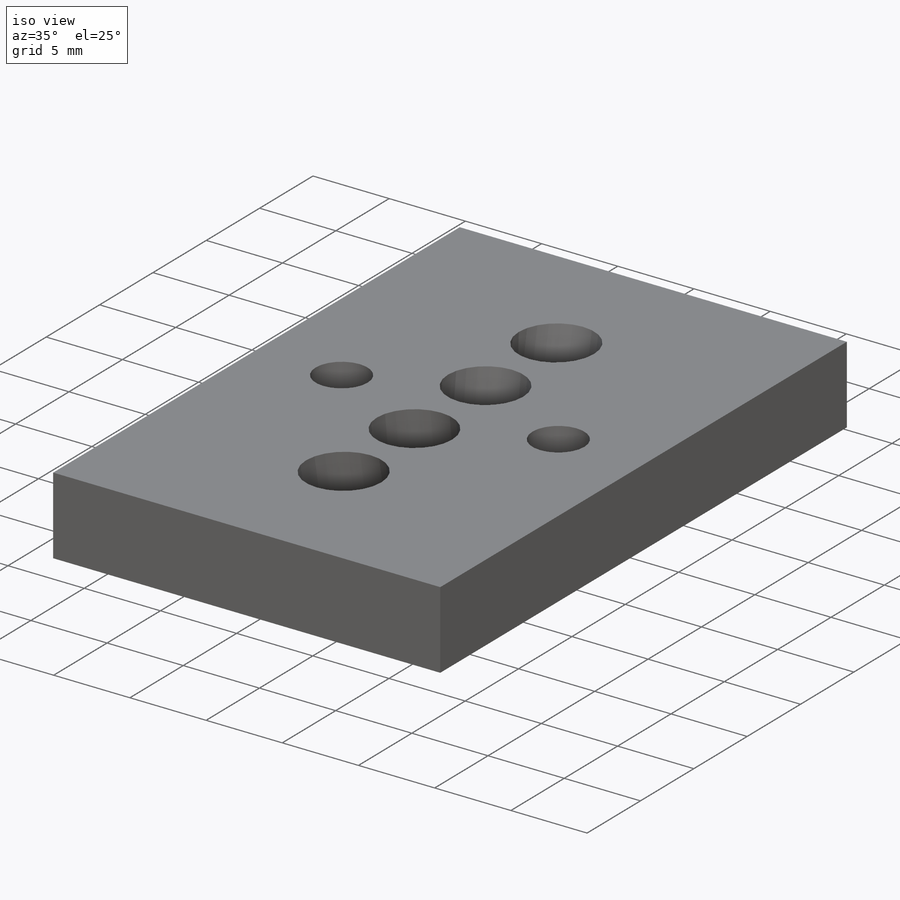
[diagram: iso view]
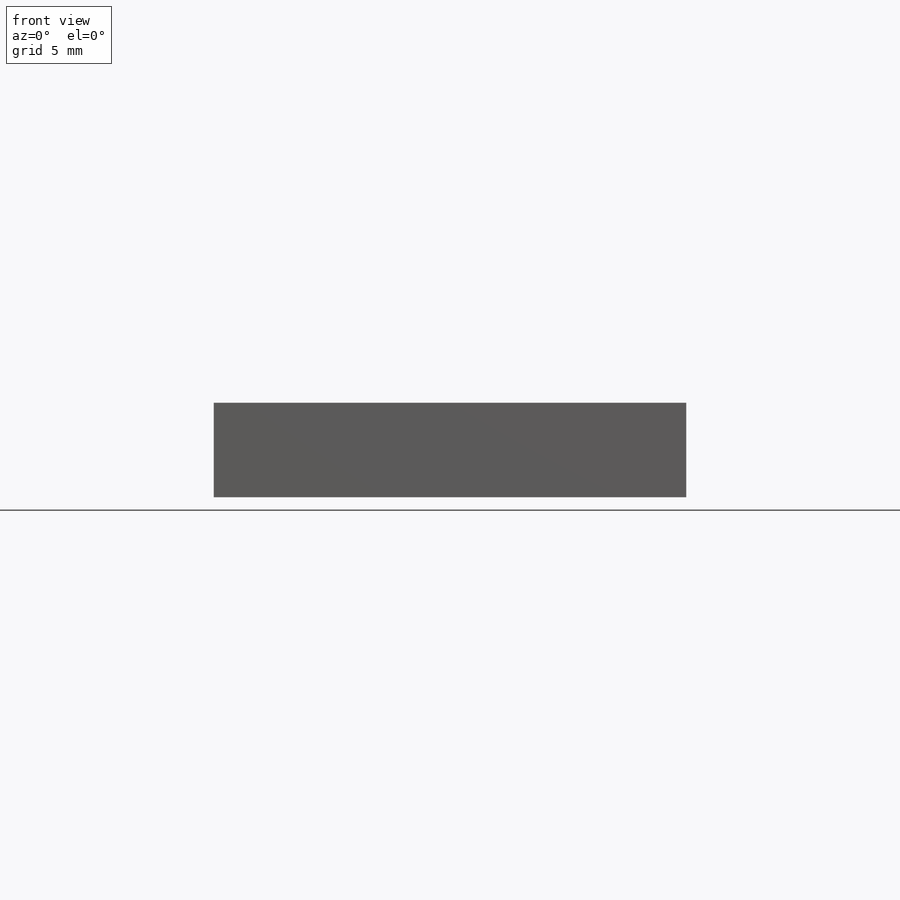
[diagram: front view]
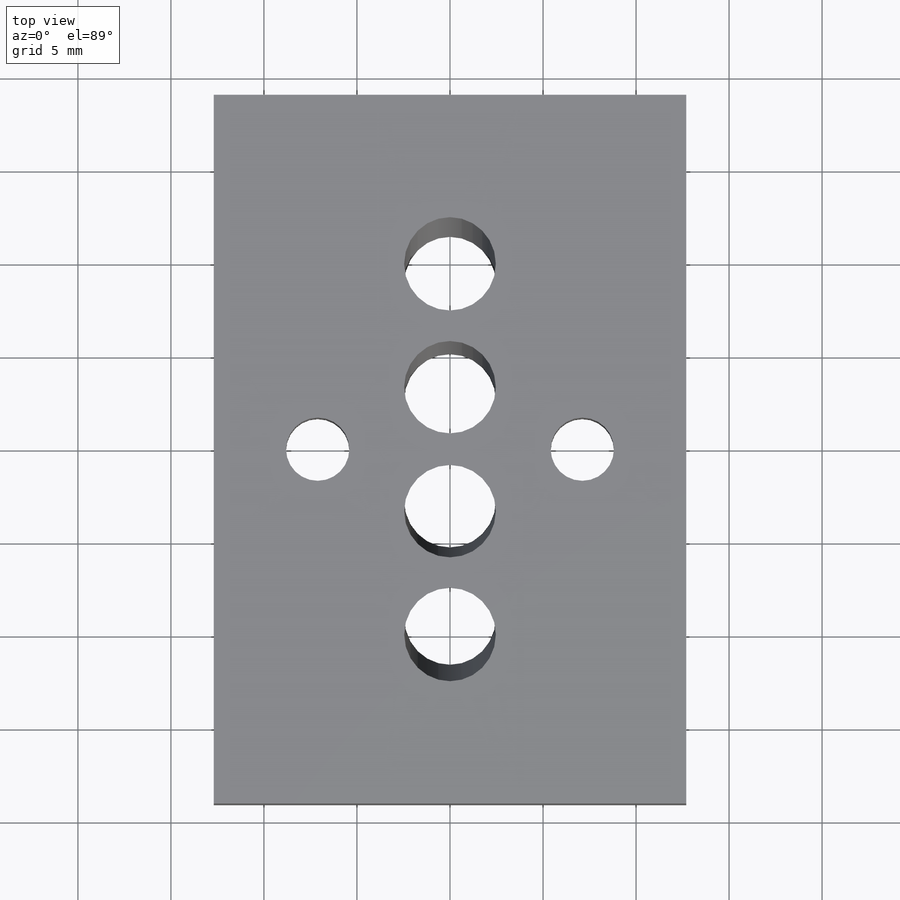
[diagram: top view]
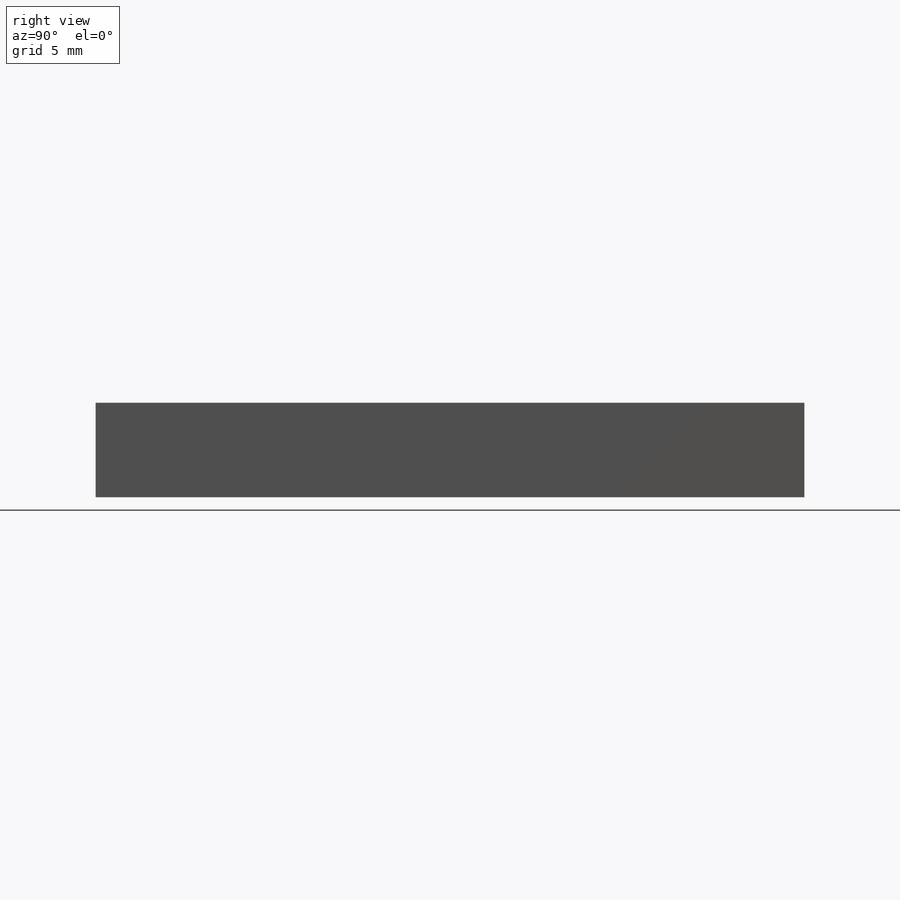
[diagram: right view]
SOLIDWORKS PART (.sldprt)
format: sldprt  version: not decoded by parser v0  size: 258,560 bytes
history: native  units: mm
features: sketch x11, plane x3, cut_extrude x3, hole x3, material x1, extrude x1, mirror x1 (+12 scaffold rows collapsed)
feature tree (35):
  scaffold x12  (default folders/planes/origin — collapsed)
  material  "Material <not specified>"
  sketch  "Sketch2"  dims[D1=25.4mm D2=38.1mm D3=38.1mm]
  extrude  "Boss-Extrude1"  Depth=5.08mm
  sketch  "Sketch6"  dims[c1.D1=~29.369488mm c2.D1=~13.58401deg c3.D1=~12.728969mm c4.D1=~153.745043deg c5.D1=~12.736057mm c6.D1=7.0deg c6.D2=4.3561mm c6.D3=~7.812524mm c6.D4=~7.812524mm c7.D3=5.9817mm c7.D4=104.0deg]
  plane  "Plane3"
  sketch  "Sketch7"  dims[c1.D2=5.461mm c1.D3=2.7305mm c2.D2=2.8194mm c2.D1=~14.584374mm]
  cut_extrude  "Cut-Extrude1"  [1 undecoded]
  plane  "Plane4"  Offset=19.05mm
  plane  "Plane5"
  sketch  "Sketch16"  dims[D1=2.8194mm]
  cut_extrude  "Cut-Extrude2"  [1 undecoded]
  mirror  "Mirror2"
  hole  "M3 Clearance Hole1"  Diameter=3.4mm Depth=25.4mm
  sketch  "Sketch21"  dims[D1=5.588mm D2=5.588mm]
  sketch  "Sketch20"  dims[hole-wizard template sketch: 47 standard entries collapsed; hole parameters kept: c15.Hole Depth=25.4mm c15.D3=~14.816244mm c15.Drill Angle=118.0deg]
  sketch  "Sketch17"  dims[D1=~2.330318mm]
  cut_extrude  "Cut-Extrude3"  [1 undecoded]
  hole  "M2 Clearance Hole1"  Diameter=2.4mm Depth=25.4mm
  sketch  "Sketch23"
  sketch  "Sketch22"  dims[hole-wizard template sketch: 47 standard entries collapsed; hole parameters kept: c15.Hole Depth=25.4mm c15.D3=~14.816244mm c15.Drill Angle=118.0deg]
  hole  "M2 Clearance Hole2"  Diameter=2.4mm Depth=25.4mm
  sketch  "Sketch25"
  sketch  "Sketch24"  dims[hole-wizard template sketch: 47 standard entries collapsed; hole parameters kept: c15.Hole Depth=25.4mm c15.D3=~14.816244mm c15.Drill Angle=118.0deg]
decode coverage: 13 of 19 modeling features carry decoded parameters
note: ~ marks probable driven/reference dimensions
note: 3 parameter values undecoded
summary: no parameter record found for 3 features
note: suppression state not decoded; provenance and decode notes live in map.json
